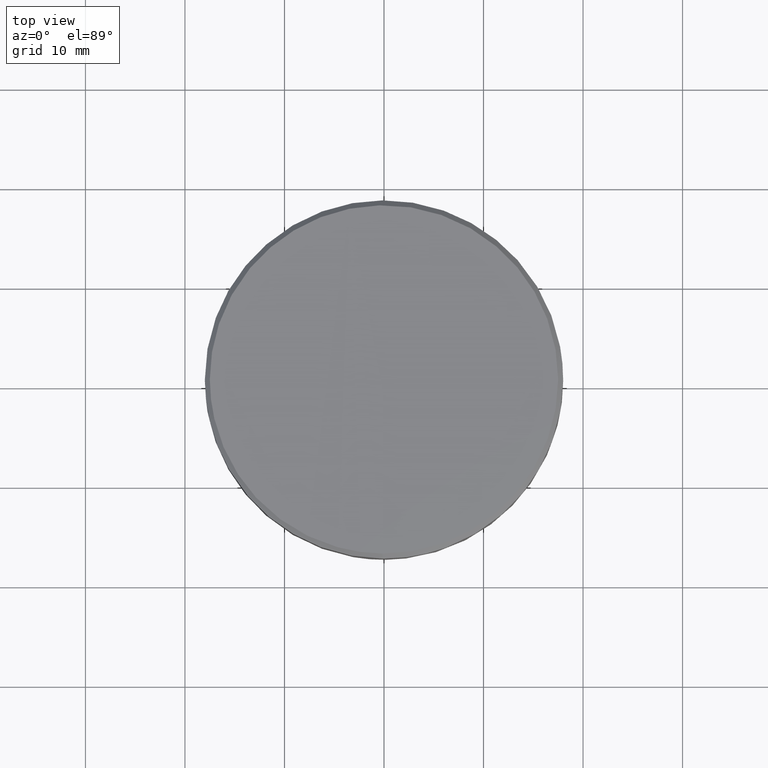
[diagram: clean part render]
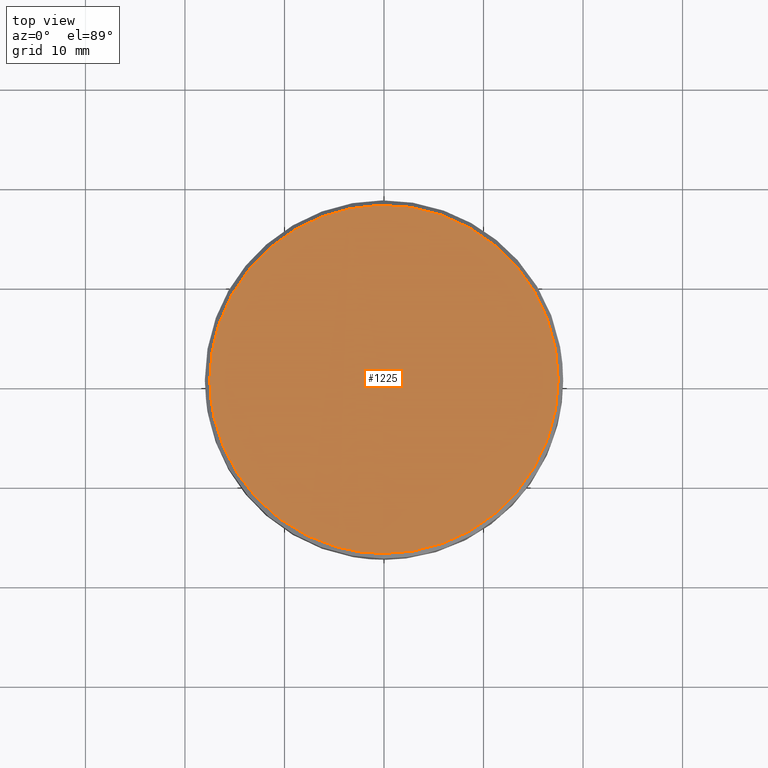
[diagram: same view with one face highlighted and labeled with its STEP entity id]
A machine part, top view. The second image highlights one B-rep face of the part: STEP entity #1225.
In plain terms, the highlighted face is a freeform B-spline surface patch.
Its self-contained STEP definition (entity closure, byte-faithful):
#288=CARTESIAN_POINT('',(-17.048817680622559,-3.948140789408552,22.999999999997168));
#289=VERTEX_POINT('',#288);
#295=CARTESIAN_POINT('',(-17.500000000000000,0.0,23.0));
#296=VERTEX_POINT('',#295);
#297=CARTESIAN_POINT('',(-17.500000000000000,0.0,23.0));
#298=CARTESIAN_POINT('',(-17.500000000000000,-1.999850311920436,23.0));
#299=CARTESIAN_POINT('',(-17.048817680622570,-3.948140789408552,22.999999999997165));
#307=(BOUNDED_CURVE()B_SPLINE_CURVE(2,(#297,#298,#299),.UNSPECIFIED.,.F.,.U.)B_SPLINE_CURVE_WITH_KNOTS((3,3),(0.500000000000000,0.538577028215852),.UNSPECIFIED.)CURVE()GEOMETRIC_REPRESENTATION_ITEM()RATIONAL_B_SPLINE_CURVE((1.0,0.954804200134407,0.923556557442039))REPRESENTATION_ITEM(''));
#308=EDGE_CURVE('',#296,#289,#307,.T.);
#310=CARTESIAN_POINT('',(17.500000000000000,0.0,23.0));
#311=VERTEX_POINT('',#310);
#312=CARTESIAN_POINT('',(17.500000000000000,0.0,23.0));
#313=CARTESIAN_POINT('',(17.499999999999996,17.499999999999996,22.999999999999993));
#314=CARTESIAN_POINT('',(0.0,17.500000000000000,23.0));
#315=CARTESIAN_POINT('',(-17.499999999999996,17.499999999999996,22.999999999999993));
#316=CARTESIAN_POINT('',(-17.500000000000000,0.0,23.0));
#324=(BOUNDED_CURVE()B_SPLINE_CURVE(2,(#312,#313,#314,#315,#316),.UNSPECIFIED.,.F.,.U.)B_SPLINE_CURVE_WITH_KNOTS((3,2,3),(0.0,0.250000000000000,0.500000000000000),.UNSPECIFIED.)CURVE()GEOMETRIC_REPRESENTATION_ITEM()RATIONAL_B_SPLINE_CURVE((1.0,0.707106781186548,1.0,0.707106781186548,1.0))REPRESENTATION_ITEM(''));
#325=EDGE_CURVE('',#311,#296,#324,.T.);
#327=CARTESIAN_POINT('',(-0.152714371277438,-17.499333653630121,22.999999999992411));
#328=VERTEX_POINT('',#327);
#329=CARTESIAN_POINT('',(-0.152714371277438,-17.499333653630117,22.999999999992411));
#330=CARTESIAN_POINT('',(-0.076358639418109,-17.500000000000000,22.999999999999996));
#331=CARTESIAN_POINT('',(0.0,-17.500000000000000,23.0));
#332=CARTESIAN_POINT('',(17.499999999999996,-17.499999999999996,22.999999999999993));
#333=CARTESIAN_POINT('',(17.500000000000000,0.0,23.0));
#341=(BOUNDED_CURVE()B_SPLINE_CURVE(2,(#329,#330,#331,#332,#333),.UNSPECIFIED.,.F.,.U.)B_SPLINE_CURVE_WITH_KNOTS((3,2,3),(0.748460105663889,0.750000000000000,1.0),.UNSPECIFIED.)CURVE()GEOMETRIC_REPRESENTATION_ITEM()RATIONAL_B_SPLINE_CURVE((0.996414028097805,0.998195901565055,1.0,0.707106781186548,1.0))REPRESENTATION_ITEM(''));
#342=EDGE_CURVE('',#328,#311,#341,.T.);
#444=CARTESIAN_POINT('',(-17.048817680622559,-3.948140789408552,22.999999999997165));
#445=CARTESIAN_POINT('',(-13.938512323452059,-17.379026817415777,23.000000000000004));
#446=CARTESIAN_POINT('',(-0.152714371277438,-17.499333653630121,22.999999999992411));
#454=(BOUNDED_CURVE()B_SPLINE_CURVE(2,(#444,#445,#446),.UNSPECIFIED.,.F.,.U.)B_SPLINE_CURVE_WITH_KNOTS((3,3),(0.538577028215852,0.748460105663889),.UNSPECIFIED.)CURVE()GEOMETRIC_REPRESENTATION_ITEM()RATIONAL_B_SPLINE_CURVE((0.923556557442037,0.753549905437253,0.996414028097804))REPRESENTATION_ITEM(''));
#455=EDGE_CURVE('',#289,#328,#454,.T.);
#1214=CARTESIAN_POINT('',(-19.248249932163208,-19.247551095767310,23.0));
#1215=CARTESIAN_POINT('',(19.248250870936360,-19.247551095767310,23.0));
#1216=CARTESIAN_POINT('',(-19.248249932163208,19.248217624707500,23.0));
#1217=CARTESIAN_POINT('',(19.248250870936360,19.248217624707500,23.0));
#1218=B_SPLINE_SURFACE_WITH_KNOTS('',1,1,((#1214,#1216),(#1215,#1217)),.UNSPECIFIED.,.F.,.F.,.U.,(2,2),(2,2),(0.0,38.496500803099579),(0.0,38.495768720474807),.UNSPECIFIED.);
#1219=ORIENTED_EDGE('',*,*,#325,.T.);
#1220=ORIENTED_EDGE('',*,*,#308,.T.);
#1221=ORIENTED_EDGE('',*,*,#455,.T.);
#1222=ORIENTED_EDGE('',*,*,#342,.T.);
#1223=EDGE_LOOP('',(#1219,#1220,#1221,#1222));
#1224=FACE_OUTER_BOUND('',#1223,.T.);
#1225=ADVANCED_FACE('',(#1224),#1218,.T.);